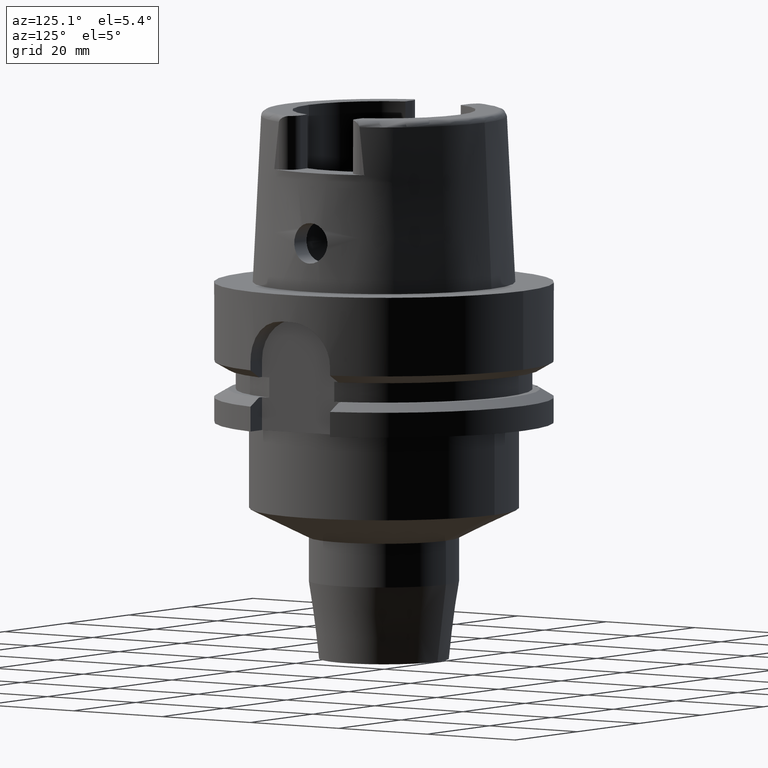
[diagram: clean part render]
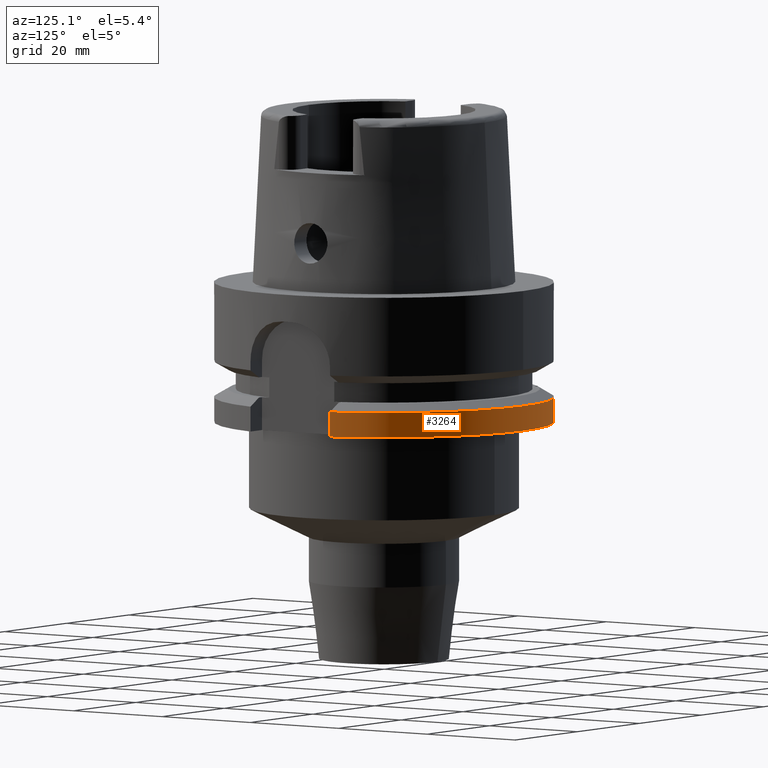
[diagram: same view with one face highlighted and labeled with its STEP entity id]
A machine part, auxiliary view. The second image highlights one B-rep face of the part: STEP entity #3264.
In plain terms, the highlighted cylindrical surface (partial cylindrical patch) has radius 31.5 mm, axis along (0, 0, 1).
Its self-contained STEP definition (entity closure, byte-faithful):
#1048=CARTESIAN_POINT('',(0.E0,0.E0,-2.6E1));
#1049=DIRECTION('',(0.E0,0.E0,1.E0));
#1050=DIRECTION('',(9.583148474999E-1,2.857142857143E-1,0.E0));
#1051=AXIS2_PLACEMENT_3D('',#1048,#1049,#1050);
#1056=CARTESIAN_POINT('',(0.E0,0.E0,-2.6E1));
#1057=DIRECTION('',(0.E0,0.E0,1.E0));
#1058=DIRECTION('',(0.E0,1.E0,0.E0));
#1059=AXIS2_PLACEMENT_3D('',#1056,#1057,#1058);
#1087=DIRECTION('',(2.980715805539E-6,2.449620258664E-6,-9.999999999926E-1));
#1088=VECTOR('',#1087,4.622451547537E0);
#1089=CARTESIAN_POINT('',(-2.000001377821E1,2.433617572403E1,
-2.137754845250E1));
#1090=LINE('',#1089,#1088);
#1094=DIRECTION('',(-4.481666724293E-8,1.503199698141E-7,1.E0));
#1095=VECTOR('',#1094,4.622495320709E0);
#1096=CARTESIAN_POINT('',(3.018691769625E1,9.E0,-2.6E1));
#1097=LINE('',#1096,#1095);
#1555=CARTESIAN_POINT('',(0.E0,0.E0,-2.137749907476E1));
#1556=DIRECTION('',(0.E0,0.E0,-1.E0));
#1557=DIRECTION('',(-6.349206349206E-1,7.725773665802E-1,0.E0));
#1558=AXIS2_PLACEMENT_3D('',#1555,#1556,#1557);
#1563=CARTESIAN_POINT('',(0.E0,0.E0,-2.137749907476E1));
#1564=DIRECTION('',(0.E0,0.E0,-1.E0));
#1565=DIRECTION('',(0.E0,1.E0,0.E0));
#1566=AXIS2_PLACEMENT_3D('',#1563,#1564,#1565);
#2437=CARTESIAN_POINT('',(-2.E1,2.433618704728E1,-2.6E1));
#2439=VERTEX_POINT('',#2437);
#2458=CARTESIAN_POINT('',(3.018691769625E1,9.E0,-2.6E1));
#2459=VERTEX_POINT('',#2458);
#2460=CARTESIAN_POINT('',(1.065814103640E-14,3.15E1,-2.6E1));
#2461=VERTEX_POINT('',#2460);
#2462=CARTESIAN_POINT('',(-2.000001377821E1,2.433617572403E1,
-2.137754845250E1));
#2463=VERTEX_POINT('',#2462);
#2482=CARTESIAN_POINT('',(3.018691748908E1,9.000000694853E0,-2.137750467929E1));
#2483=VERTEX_POINT('',#2482);
#2484=CARTESIAN_POINT('',(0.E0,3.15E1,-2.137749907476E1));
#2485=VERTEX_POINT('',#2484);
#3248=CARTESIAN_POINT('',(0.E0,0.E0,-7.51E1));
#3249=DIRECTION('',(0.E0,0.E0,1.E0));
#3250=DIRECTION('',(0.E0,1.E0,0.E0));
#3251=AXIS2_PLACEMENT_3D('',#3248,#3249,#3250);
#3252=CYLINDRICAL_SURFACE('',#3251,3.15E1);
#3253=ORIENTED_EDGE('',*,*,#3237,.T.);
#3254=ORIENTED_EDGE('',*,*,#3220,.F.);
#3255=ORIENTED_EDGE('',*,*,#3218,.F.);
#3257=ORIENTED_EDGE('',*,*,#3256,.T.);
#3259=ORIENTED_EDGE('',*,*,#3258,.F.);
#3261=ORIENTED_EDGE('',*,*,#3260,.F.);
#3262=EDGE_LOOP('',(#3253,#3254,#3255,#3257,#3259,#3261));
#3263=FACE_OUTER_BOUND('',#3262,.F.);
#1052=CIRCLE('',#1051,3.15E1);
#1060=CIRCLE('',#1059,3.15E1);
#1559=CIRCLE('',#1558,3.15E1);
#1567=CIRCLE('',#1566,3.15E1);
#3218=EDGE_CURVE('',#2459,#2461,#1052,.T.);
#3220=EDGE_CURVE('',#2461,#2439,#1060,.T.);
#3237=EDGE_CURVE('',#2463,#2439,#1090,.T.);
#3256=EDGE_CURVE('',#2459,#2483,#1097,.T.);
#3258=EDGE_CURVE('',#2485,#2483,#1567,.T.);
#3260=EDGE_CURVE('',#2463,#2485,#1559,.T.);
#3264=ADVANCED_FACE('',(#3263),#3252,.T.);